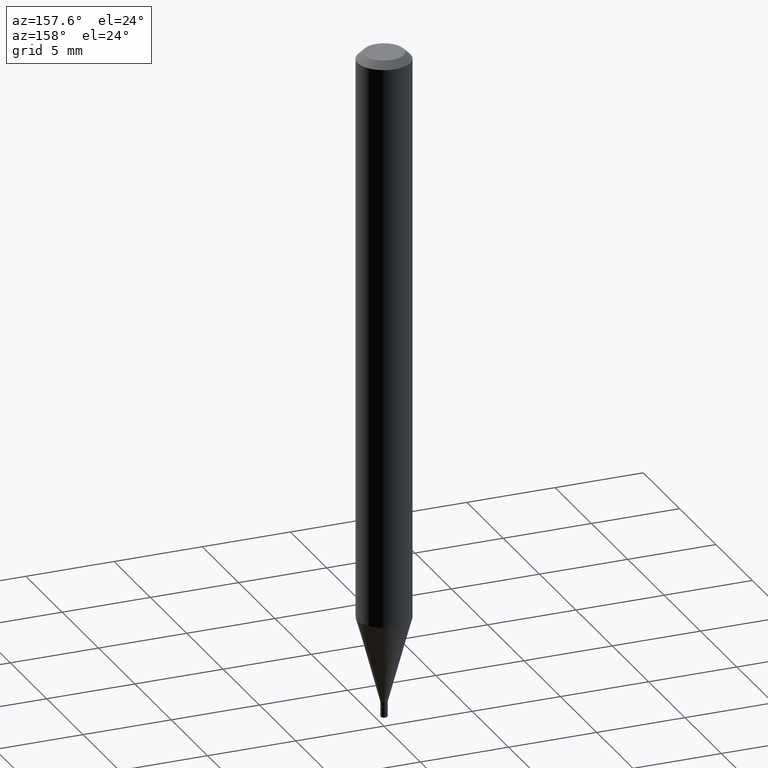
[diagram: clean part render]
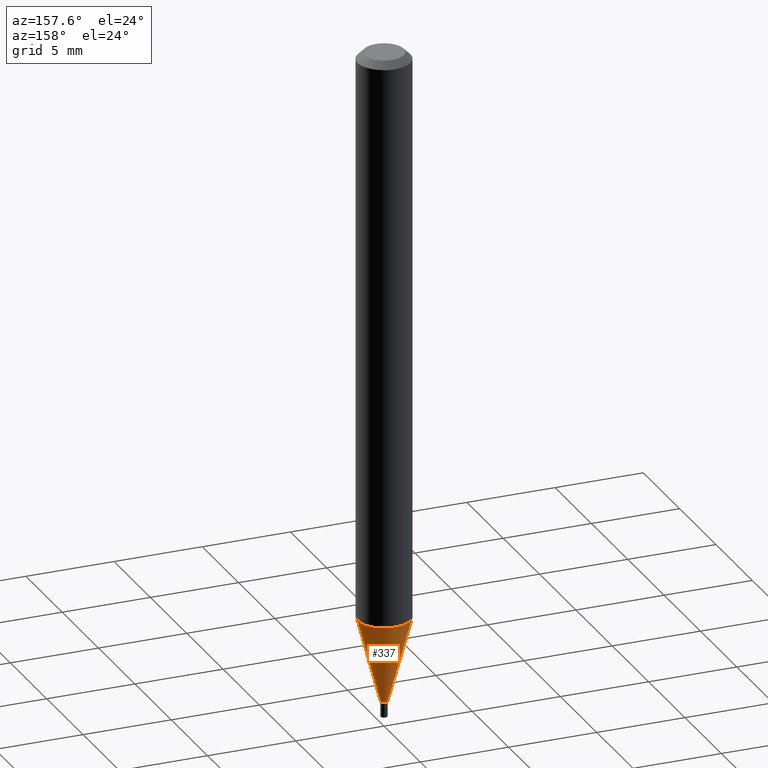
[diagram: same view with one face highlighted and labeled with its STEP entity id]
A machine part, auxiliary view. The second image highlights one B-rep face of the part: STEP entity #337.
In plain terms, the highlighted conical surface has half-angle 15 deg.
Its self-contained STEP definition (entity closure, byte-faithful):
#1 = DIRECTION ( 'NONE',  ( 1.000000000000000000, -6.982962677686273021E-15, 0.000000000000000000 ) ) ;
#10 = CARTESIAN_POINT ( 'NONE',  ( 0.007849999999999919542, -5.173327899763888780E-15, -1.466000000000000192 ) ) ;
#28 = CARTESIAN_POINT ( 'NONE',  ( 3.585057269867410650E-29, -5.118511642744051990E-15, -1.466000000000000192 ) ) ;
#39 = CARTESIAN_POINT ( 'NONE',  ( -0.007849999999999919542, -5.062734037986884746E-15, -1.466000000000000192 ) ) ;
#53 = DIRECTION ( 'NONE',  ( -0.2588190451025214611, 5.211531920934551042E-15, 0.9659258262890682012 ) ) ;
#65 = DIRECTION ( 'NONE',  ( -2.445468806185136597E-29, 3.491481338843145583E-15, 1.000000000000000000 ) ) ;
#76 = EDGE_CURVE ( 'NONE', #308, #192, #382, .T. ) ;
#92 = CARTESIAN_POINT ( 'NONE',  ( 0.05904999999999998445, -4.863699838449076344E-15, -1.274918998652473823 ) ) ;
#108 = VECTOR ( 'NONE', #53, 39.37007874015747433 ) ;
#110 = DIRECTION ( 'NONE',  ( -2.445468806185136597E-29, 3.491481338843145583E-15, 1.000000000000000000 ) ) ;
#117 = CARTESIAN_POINT ( 'NONE',  ( 0.007849999999999919542, -5.173327899763888780E-15, -1.466000000000000192 ) ) ;
#121 = FACE_OUTER_BOUND ( 'NONE', #284, .T. ) ;
#161 = CIRCLE ( 'NONE', #319, 0.05904999999999999832 ) ;
#175 = CARTESIAN_POINT ( 'NONE',  ( 3.585057269867410650E-29, -5.118511642744051990E-15, -1.466000000000000192 ) ) ;
#183 = EDGE_CURVE ( 'NONE', #308, #390, #399, .T. ) ;
#186 = DIRECTION ( 'NONE',  ( -2.445468806185136597E-29, 3.491481338843145583E-15, 1.000000000000000000 ) ) ;
#192 = VERTEX_POINT ( 'NONE', #335 ) ;
#200 = CARTESIAN_POINT ( 'NONE',  ( 3.117774641617414915E-29, -4.451355892331702213E-15, -1.274918998652473823 ) ) ;
#202 = ORIENTED_EDGE ( 'NONE', *, *, #76, .T. ) ;
#222 = ORIENTED_EDGE ( 'NONE', *, *, #183, .F. ) ;
#265 = ORIENTED_EDGE ( 'NONE', *, *, #420, .T. ) ;
#279 = VECTOR ( 'NONE', #396, 39.37007874015747433 ) ;
#284 = EDGE_LOOP ( 'NONE', ( #202, #265, #383, #222 ) ) ;
#291 = CARTESIAN_POINT ( 'NONE',  ( -0.05904999999999998445, -4.031780406865363509E-15, -1.274918998652473823 ) ) ;
#308 = VERTEX_POINT ( 'NONE', #10 ) ;
#310 = DIRECTION ( 'NONE',  ( 1.000000000000000000, -6.982962677686274599E-15, 0.000000000000000000 ) ) ;
#319 = AXIS2_PLACEMENT_3D ( 'NONE', #200, #186, #1 ) ;
#335 = CARTESIAN_POINT ( 'NONE',  ( -0.007849999999999919542, -4.547257222426124522E-15, -1.466000000000000192 ) ) ;
#337 = ADVANCED_FACE ( 'NONE', ( #121 ), #408, .T. ) ;
#366 = DIRECTION ( 'NONE',  ( 1.000000000000000000, -6.982962677686274599E-15, 0.000000000000000000 ) ) ;
#370 = LINE ( 'NONE', #39, #108 ) ;
#374 = AXIS2_PLACEMENT_3D ( 'NONE', #28, #110, #366 ) ;
#382 = CIRCLE ( 'NONE', #452, 0.007849999999999919542 ) ;
#383 = ORIENTED_EDGE ( 'NONE', *, *, #433, .F. ) ;
#390 = VERTEX_POINT ( 'NONE', #92 ) ;
#396 = DIRECTION ( 'NONE',  ( 0.2588190451025214611, 1.565188264969621573E-15, 0.9659258262890682012 ) ) ;
#397 = VERTEX_POINT ( 'NONE', #291 ) ;
#399 = LINE ( 'NONE', #117, #279 ) ;
#408 = CONICAL_SURFACE ( 'NONE', #374, 0.007849999999999919542, 0.2617993877991501295 ) ;
#420 = EDGE_CURVE ( 'NONE', #192, #397, #370, .T. ) ;
#433 = EDGE_CURVE ( 'NONE', #390, #397, #161, .T. ) ;
#452 = AXIS2_PLACEMENT_3D ( 'NONE', #175, #65, #310 ) ;